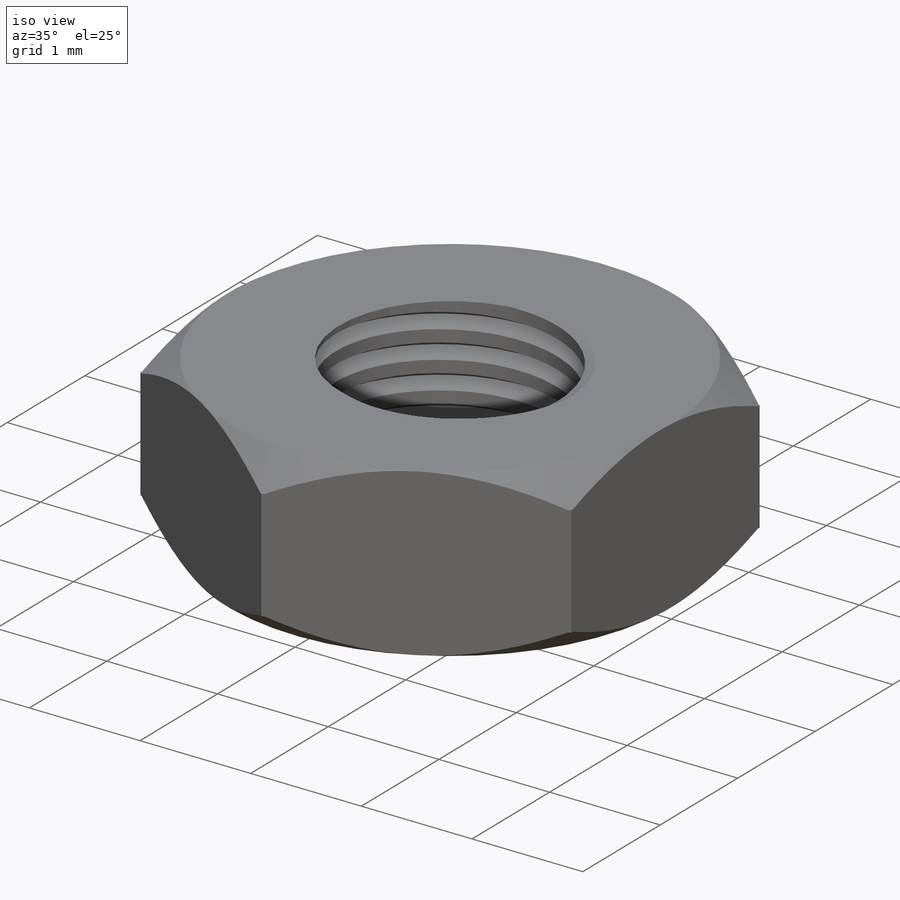
[diagram: iso view]
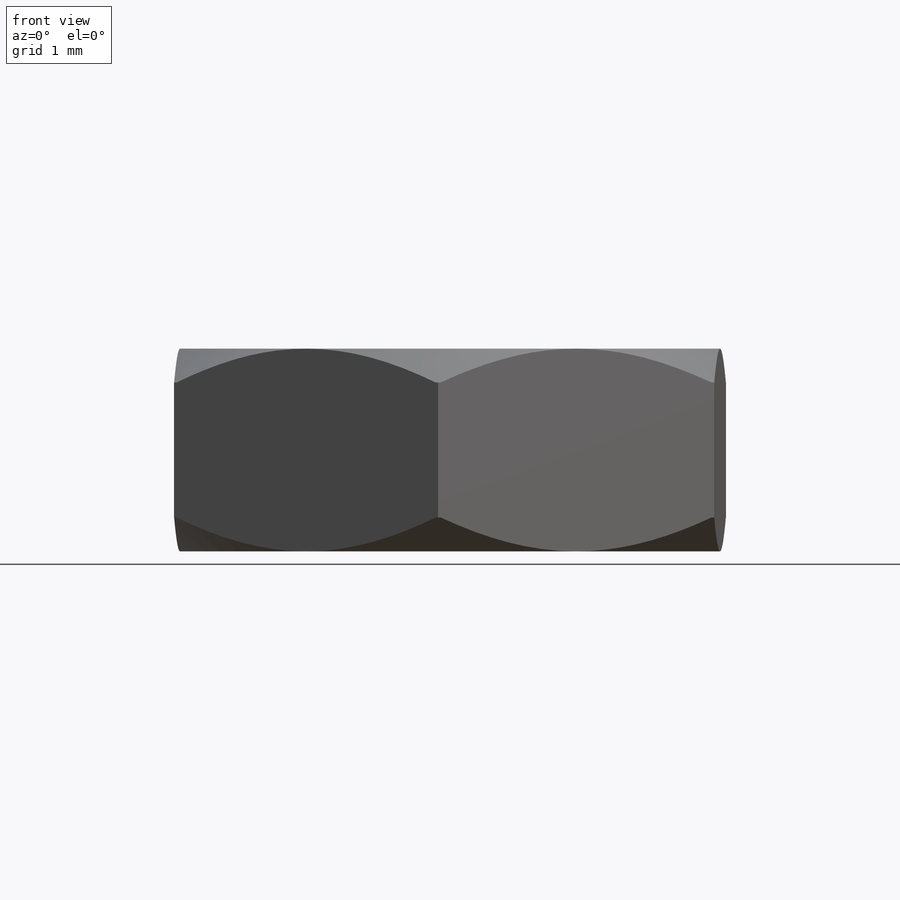
[diagram: front view]
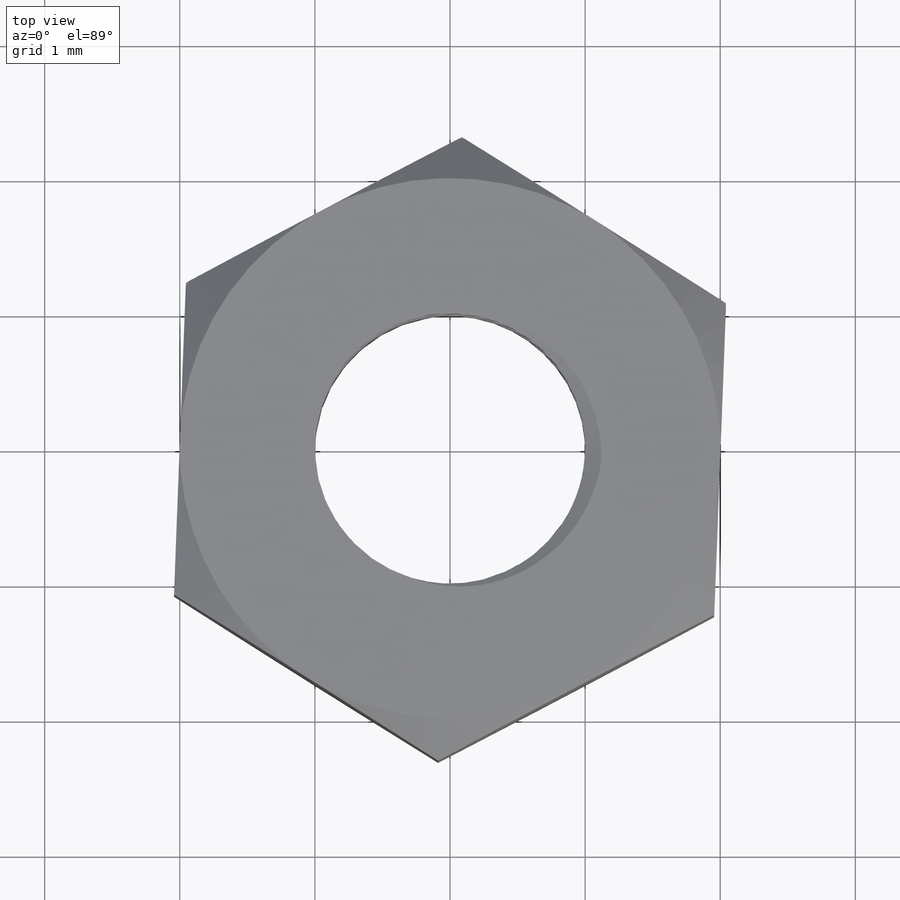
[diagram: top view]
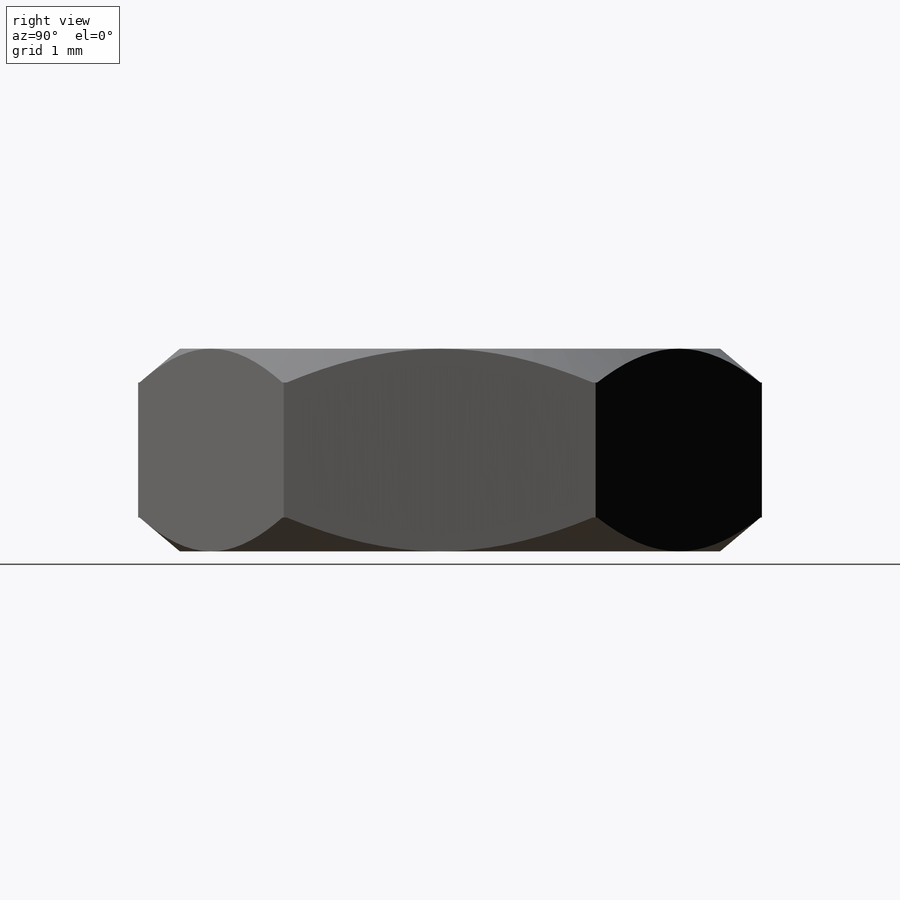
[diagram: right view]
SOLIDWORKS PART (.sldprt)
format: sldprt  version: not decoded by parser v0  size: 327,168 bytes
history: native  units: mm
features: sketch x5, cut_extrude x2, material x1, extrude x1, helix x1, sweep x1 (+12 scaffold rows collapsed)
feature tree (23):
  scaffold x12  (default folders/planes/origin — collapsed)
  material  "Material <not specified>"
  sketch  "Sketch1"  dims[D1=4.0mm]
  extrude  "Boss-Extrude2"  Depth=1.5mm
  sketch  "Sketch3"
  cut_extrude  "Cut-Extrude2"  Depth=0.25mm
  sketch  "Sketch4"
  cut_extrude  "Cut-Extrude3"  Depth=0.25mm
  sketch  "Sketch5"
  helix  "Helix/Spiral1"  Pitch=2mm
  sketch  "Sketch6"  dims[D1=0.22mm]
  sweep  "Cut-Sweep1"
decode coverage: 6 of 10 modeling features carry decoded parameters
note: suppression state not decoded; provenance and decode notes live in map.json
